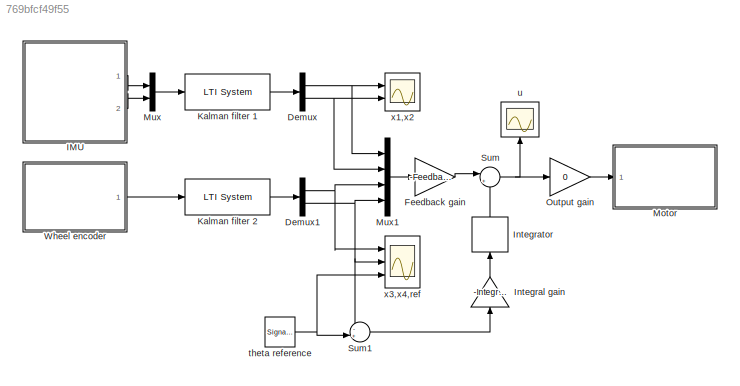
MODEL slx_769bfcf49f55
KIND model
CONFIG AbsTol = auto
CONFIG FixedStep = auto
CONFIG InitFcn = if IMU_Kalman_D.a==0\n  IMU_Kalman_D.Ts = Ts;\nend\nif Wheel_Kalman_D.a==0\n  Wheel_Kalman_D.Ts = Ts;\nend\n
CONFIG MaxStep = auto
CONFIG MinStep = auto
CONFIG PostLoadFcn = init_lab3\n
CONFIG RelTol = 1e-3
CONFIG SampleTimeConstraint = Unconstrained
CONFIG Solver = ode45
CONFIG SolverMode = Auto
CONFIG SolverName = ode45
CONFIG StartTime = 0.0
CONFIG StopTime = 10.0
BLOCK [Demux] Demux
  DisplayOption = bar
  Outputs = 2
  Ports = [1, 2]
BLOCK [Demux] Demux1
  DisplayOption = bar
  Outputs = 2
  Ports = [1, 2]
BLOCK [Gain] Feedback gain
  Gain = -Feedback_Gain
  Multiplication = Matrix(K*u)
  OutDataTypeStr = Inherit: Inherit via internal rule
  ParamDataTypeStr = Inherit: Inherit via internal rule
  SaturateOnIntegerOverflow = off
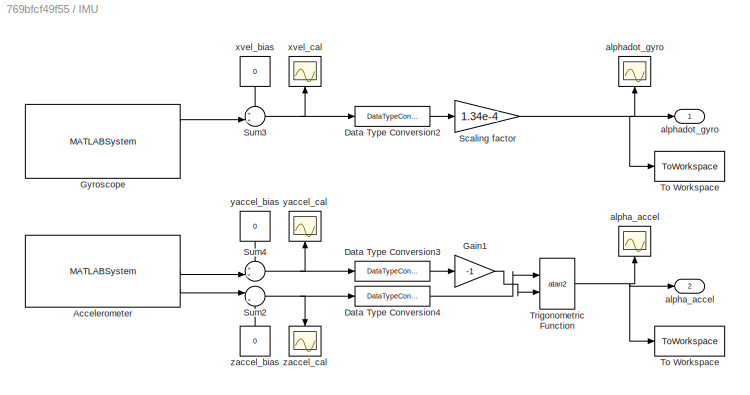
BLOCK [SubSystem] IMU
  Ports = [0, 2]
  RequestExecContextInheritance = off
  Variant = off
BLOCK [ToWorkspace] IMU/ To Workspace 
  FixptAsFi = on
  Ports = [1]
  SampleTime = -1
  Save2DSignal = 2-D array (concatenate along first dimension)
  VariableName = alpha_accel
BLOCK [MATLABSystem] IMU/Accelerometer
  MaskDisplay = disp('soMPU6050Accel');\nport_label('output',1,'xaccel');\nport_label('output',2,'yaccel');\nport_label('output',3,'zaccel');
  MaskType = soMPU6050Accel
  Ports = [0, 3]
  SimulateUsing = Code generation
  System = soMPU6050Accel
BLOCK [DataTypeConversion] IMU/Data Type Conversion2
  OutDataTypeStr = double
  RndMeth = Floor
  SaturateOnIntegerOverflow = off
BLOCK [DataTypeConversion] IMU/Data Type Conversion3
  OutDataTypeStr = double
  RndMeth = Floor
  SaturateOnIntegerOverflow = off
BLOCK [DataTypeConversion] IMU/Data Type Conversion4
  OutDataTypeStr = double
  RndMeth = Floor
  SaturateOnIntegerOverflow = off
BLOCK [Gain] IMU/Gain1
  Gain = -1
  OutDataTypeStr = Inherit: Inherit via internal rule
  ParamDataTypeStr = Inherit: Inherit via internal rule
  SaturateOnIntegerOverflow = off
BLOCK [MATLABSystem] IMU/Gyroscope
  DLPFmode = 0
  MaskDisplay = disp('soMPU6050Gyro');\nport_label('output',1,'xvel');\nport_label('output',2,'yvel');\nport_label('output',3,'zvel');
  MaskType = soMPU6050Gyro
  Ports = [0, 3]
  System = soMPU6050Gyro
BLOCK [Gain] IMU/Scaling factor
  Gain = 1.34e-4
  OutDataTypeStr = Inherit: Inherit via internal rule
  ParamDataTypeStr = Inherit: Inherit via internal rule
  SaturateOnIntegerOverflow = off
BLOCK [Sum] IMU/Sum2
  IconShape = round
  InputSameDT = off
  Inputs = |++
  OutDataTypeStr = Inherit: Inherit via internal rule
  Ports = [2, 1]
  SaturateOnIntegerOverflow = off
BLOCK [Sum] IMU/Sum3
  IconShape = round
  InputSameDT = off
  Inputs = ++|
  OutDataTypeStr = Inherit: Inherit via internal rule
  Ports = [2, 1]
  SaturateOnIntegerOverflow = off
BLOCK [Sum] IMU/Sum4
  IconShape = round
  InputSameDT = off
  Inputs = ++|
  OutDataTypeStr = Inherit: Inherit via internal rule
  Ports = [2, 1]
  SaturateOnIntegerOverflow = off
BLOCK [ToWorkspace] IMU/To Workspace
  FixptAsFi = on
  Ports = [1]
  SampleTime = -1
  Save2DSignal = 2-D array (concatenate along first dimension)
  VariableName = alphadot_gyro
BLOCK [Trigonometry] IMU/Trigonometric Function
  Operator = atan2
  Ports = [2, 1]
BLOCK [Outport] IMU/alpha_accel
  IconDisplay = Port number
  Port = 2
BLOCK [Scope] IMU/alpha_accel 
  Ports = [1]
  ScopeSpecificationString = Simulink.scopes.TimeScopeBlockCfg('CurrentConfiguration', extmgr.ConfigurationSet(extmgr.Configuration('Core','General UI',true),extmgr.Configuration('Core','Source UI',true),extmgr.Configuration('Sources','WiredSimulink',true,'DataLoggingSaveFormat','StructureWithTime','DataLoggingDecimation','1','DataLoggingVariableName','ScopeData3'),extmgr.Configuration('Visuals','Time Domain',true,'Serialized...<+1798ch>
BLOCK [Outport] IMU/alphadot_gyro
  IconDisplay = Port number
BLOCK [Scope] IMU/alphadot_gyro 
  Ports = [1]
  ScopeSpecificationString = Simulink.scopes.TimeScopeBlockCfg('CurrentConfiguration', extmgr.ConfigurationSet(extmgr.Configuration('Core','General UI',true),extmgr.Configuration('Core','Source UI',true),extmgr.Configuration('Sources','WiredSimulink',true,'DataLoggingSaveFormat','StructureWithTime','DataLoggingDecimation','1','DataLoggingVariableName','ScopeData2'),extmgr.Configuration('Visuals','Time Domain',true,'Serialized...<+1796ch>
BLOCK [Constant] IMU/xvel_bias
  Value = 0
BLOCK [Scope] IMU/xvel_cal
  Ports = [1]
  ScopeSpecificationString = Simulink.scopes.TimeScopeBlockCfg('CurrentConfiguration', extmgr.ConfigurationSet(extmgr.Configuration('Core','General UI',true),extmgr.Configuration('Core','Source UI',true),extmgr.Configuration('Sources','WiredSimulink',true,'DataLoggingSaveFormat','StructureWithTime','DataLoggingDecimation','1','DataLoggingVariableName','alphadot_gyro'),extmgr.Configuration('Visuals','Time Domain',true,'Seriali...<+1803ch>
BLOCK [Constant] IMU/yaccel_bias
  Value = 0
BLOCK [Scope] IMU/yaccel_cal
  Ports = [1]
  ScopeSpecificationString = Simulink.scopes.TimeScopeBlockCfg('CurrentConfiguration', extmgr.ConfigurationSet(extmgr.Configuration('Core','General UI',true),extmgr.Configuration('Core','Source UI',true),extmgr.Configuration('Sources','WiredSimulink',true,'DataLoggingSaveFormat','StructureWithTime','DataLoggingDecimation','1','DataLoggingVariableName','ScopeData1'),extmgr.Configuration('Visuals','Time Domain',true,'Serialized...<+1812ch>
BLOCK [Constant] IMU/zaccel_bias
  Value = 0
BLOCK [Scope] IMU/zaccel_cal
  Ports = [1]
  ScopeSpecificationString = Simulink.scopes.TimeScopeBlockCfg('CurrentConfiguration', extmgr.ConfigurationSet(extmgr.Configuration('Core','General UI',true),extmgr.Configuration('Core','Source UI',true),extmgr.Configuration('Sources','WiredSimulink',true,'DataLoggingSaveFormat','StructureWithTime','DataLoggingDecimation','1','DataLoggingVariableName','ScopeData2'),extmgr.Configuration('Visuals','Time Domain',true,'Serialized...<+1778ch>
BLOCK [Gain] Integral gain
  Gain = -Integral_Gain
  OutDataTypeStr = Inherit: Inherit via internal rule
  ParamDataTypeStr = Inherit: Inherit via internal rule
  SaturateOnIntegerOverflow = off
BLOCK [DiscreteIntegrator] Integrator
  ICPrevOutput = DiscIntNeverNeededParam
  ICPrevScaledInput = DiscIntNeverNeededParam
  InitialConditionSetting = State (most efficient)
  Ports = [1, 1]
  SampleTime = -1
  gainval = 1
BLOCK [Reference] Kalman filter 1  REF=cstblocks/LTI System
  Ports = [1, 1]
  SourceBlock = cstblocks/LTI System
  SourceType = LTI Block
BLOCK [Reference] Kalman filter 2  REF=cstblocks/LTI System
  Ports = [1, 1]
  SourceBlock = cstblocks/LTI System
  SourceType = LTI Block
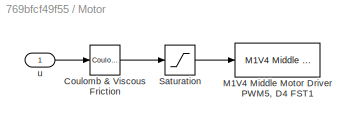
BLOCK [SubSystem] Motor
  Ports = [1]
  RequestExecContextInheritance = off
  Variant = off
BLOCK [Reference] Motor/Coulomb & Viscous Friction  REF=simulink/Discontinuities/Coulomb &
Viscous Friction
  Ports = [1, 1]
  SourceBlock = simulink/Discontinuities/Coulomb &\nViscous Friction
  SourceType = Coulombic and Viscous Friction
BLOCK [Reference] Motor/M1V4  Middle Motor Driver PWM5, D4 FST1  REF=MinSegLibrary_M1V4/M1V4  Middle Motor Driver
PWM5, D4 FST
  Ports = [1]
  SourceBlock = MinSegLibrary_M1V4/M1V4  Middle Motor Driver\nPWM5, D4 FST
  SourceType = Motor Driver
BLOCK [Saturate] Motor/Saturation
  InputPortMap = u0
  LowerLimit = -3.25
  Ports = [1, 1]
  UpperLimit = 3.25
BLOCK [Inport] Motor/u
  IconDisplay = Port number
BLOCK [Mux] Mux
  DisplayOption = bar
  Inputs = 2
  Ports = [2, 1]
BLOCK [Mux] Mux1
  DisplayOption = bar
  Ports = [4, 1]
BLOCK [Gain] Output gain
  Gain = 0
  OutDataTypeStr = Inherit: Inherit via internal rule
  ParamDataTypeStr = Inherit: Inherit via internal rule
  SaturateOnIntegerOverflow = off
BLOCK [Sum] Sum
  IconShape = round
  InputSameDT = off
  Inputs = |++
  OutDataTypeStr = Inherit: Inherit via internal rule
  Ports = [2, 1]
  SaturateOnIntegerOverflow = off
BLOCK [Sum] Sum1
  IconShape = round
  InputSameDT = off
  Inputs = -+|
  OutDataTypeStr = Inherit: Inherit via internal rule
  Ports = [2, 1]
  SaturateOnIntegerOverflow = off
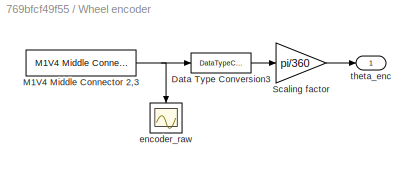
BLOCK [SubSystem] Wheel encoder
  Ports = [0, 1]
  RequestExecContextInheritance = off
  Variant = off
BLOCK [DataTypeConversion] Wheel encoder/Data Type Conversion3
  OutDataTypeStr = double
  RndMeth = Floor
  SaturateOnIntegerOverflow = off
BLOCK [Reference] Wheel encoder/M1V4 Middle Connector 2,3  REF=MinSegLibrary_M1V4/M1V4 Middle Connector 2,3
  Ports = [0, 1]
  SourceBlock = MinSegLibrary_M1V4/M1V4 Middle Connector 2,3
  SourceType = Encoder_arduino
BLOCK [Gain] Wheel encoder/Scaling factor
  Gain = pi/360
  OutDataTypeStr = Inherit: Inherit via internal rule
  ParamDataTypeStr = Inherit: Inherit via internal rule
  SaturateOnIntegerOverflow = off
BLOCK [Scope] Wheel encoder/encoder_raw
  Ports = [1]
  ScopeSpecificationString = Simulink.scopes.TimeScopeBlockCfg('CurrentConfiguration', extmgr.ConfigurationSet(extmgr.Configuration('Core','General UI',true),extmgr.Configuration('Core','Source UI',true),extmgr.Configuration('Sources','WiredSimulink',true,'DataLoggingSaveFormat','StructureWithTime','DataLoggingDecimation','1','DataLoggingVariableName','ScopeData1'),extmgr.Configuration('Visuals','Time Domain',true,'Serialized...<+1694ch>
BLOCK [Outport] Wheel encoder/theta_enc
  IconDisplay = Port number
BLOCK [SignalGenerator] theta reference
  Amplitude = 0
  Frequency = 0.025
  Ports = [0, 1]
  WaveForm = square
BLOCK [Scope] u
  Ports = [1]
  ScopeSpecificationString = Simulink.scopes.TimeScopeBlockCfg('CurrentConfiguration', extmgr.ConfigurationSet(extmgr.Configuration('Core','General UI',true),extmgr.Configuration('Core','Source UI',true),extmgr.Configuration('Sources','WiredSimulink',true,'DataLoggingVariableName','ScopeData1','DataLoggingSaveFormat','StructureWithTime','DataLoggingLimitDataPoints',true,'DataLoggingDecimation','1','DataLoggingDecimateData',tr...<+1977ch>
BLOCK [Scope] x1,x2
  NumInputPorts = 2
  Ports = [2]
  ScopeSpecificationString = Simulink.scopes.TimeScopeBlockCfg('CurrentConfiguration', extmgr.ConfigurationSet(extmgr.Configuration('Core','General UI',true),extmgr.Configuration('Core','Source UI',true),extmgr.Configuration('Sources','WiredSimulink',true,'DataLoggingVariableName','ScopeData2','DataLoggingSaveFormat','StructureWithTime','DataLoggingLimitDataPoints',true,'DataLoggingDecimation','1','DataLoggingDecimateData',tr...<+2000ch>
BLOCK [Scope] x3,x4,ref
  NumInputPorts = 3
  Ports = [3]
  ScopeSpecificationString = Simulink.scopes.TimeScopeBlockCfg('CurrentConfiguration', extmgr.ConfigurationSet(extmgr.Configuration('Core','General UI',true),extmgr.Configuration('Core','Source UI',true),extmgr.Configuration('Sources','WiredSimulink',true,'DataLoggingVariableName','ScopeData2','DataLoggingSaveFormat','StructureWithTime','DataLoggingLimitDataPoints',true,'DataLoggingDecimation','1','DataLoggingDecimateData',tr...<+2155ch>
NET Demux1:1 -> Mux1:3, x3,x4,ref:1
NET Demux1:2 -> Mux1:4, Sum1:1, x3,x4,ref:2
NET Demux:1 -> Mux1:1, x1,x2:1
NET Demux:2 -> Mux1:2, x1,x2:2
LINE Feedback gain:1 -> Sum:1
LINE IMU/Accelerometer:2 -> IMU/Sum4:2
LINE IMU/Accelerometer:3 -> IMU/Sum2:1
LINE IMU/Data Type Conversion2:1 -> IMU/Scaling factor:1
LINE IMU/Data Type Conversion3:1 -> IMU/Gain1:1
LINE IMU/Data Type Conversion4:1 -> IMU/Trigonometric Function:1
LINE IMU/Gain1:1 -> IMU/Trigonometric Function:2
LINE IMU/Gyroscope:1 -> IMU/Sum3:2
NET IMU/Scaling factor:1 -> IMU/To Workspace:1, IMU/alphadot_gyro :1, IMU/alphadot_gyro:1
NET IMU/Sum2:1 -> IMU/Data Type Conversion4:1, IMU/zaccel_cal:1
NET IMU/Sum3:1 -> IMU/Data Type Conversion2:1, IMU/xvel_cal:1
NET IMU/Sum4:1 -> IMU/Data Type Conversion3:1, IMU/yaccel_cal:1
NET IMU/Trigonometric Function:1 -> IMU/ To Workspace :1, IMU/alpha_accel :1, IMU/alpha_accel:1
LINE IMU/xvel_bias:1 -> IMU/Sum3:1
LINE IMU/yaccel_bias:1 -> IMU/Sum4:1
LINE IMU/zaccel_bias:1 -> IMU/Sum2:2
LINE IMU:1 -> Mux:1
LINE IMU:2 -> Mux:2
LINE Integral gain:1 -> Integrator:1
LINE Integrator:1 -> Sum:2
LINE Kalman filter 1:1 -> Demux:1
LINE Kalman filter 2:1 -> Demux1:1
LINE Motor/Coulomb & Viscous Friction:1 -> Motor/Saturation:1
LINE Motor/Saturation:1 -> Motor/M1V4  Middle Motor Driver PWM5, D4 FST1:1
LINE Motor/u:1 -> Motor/Coulomb & Viscous Friction:1
LINE Mux1:1 -> Feedback gain:1
LINE Mux:1 -> Kalman filter 1:1
LINE Output gain:1 -> Motor:1
LINE Sum1:1 -> Integral gain:1
NET Sum:1 -> Output gain:1, u:1
LINE Wheel encoder/Data Type Conversion3:1 -> Wheel encoder/Scaling factor:1
NET Wheel encoder/M1V4 Middle Connector 2,3:1 -> Wheel encoder/Data Type Conversion3:1, Wheel encoder/encoder_raw:1
LINE Wheel encoder/Scaling factor:1 -> Wheel encoder/theta_enc:1
LINE Wheel encoder:1 -> Kalman filter 2:1
NET theta reference:1 -> Sum1:2, x3,x4,ref:3
note: NET lines group one-source signal fan-out (src -> all destinations, sorted); 1:1 wires keep LINE
